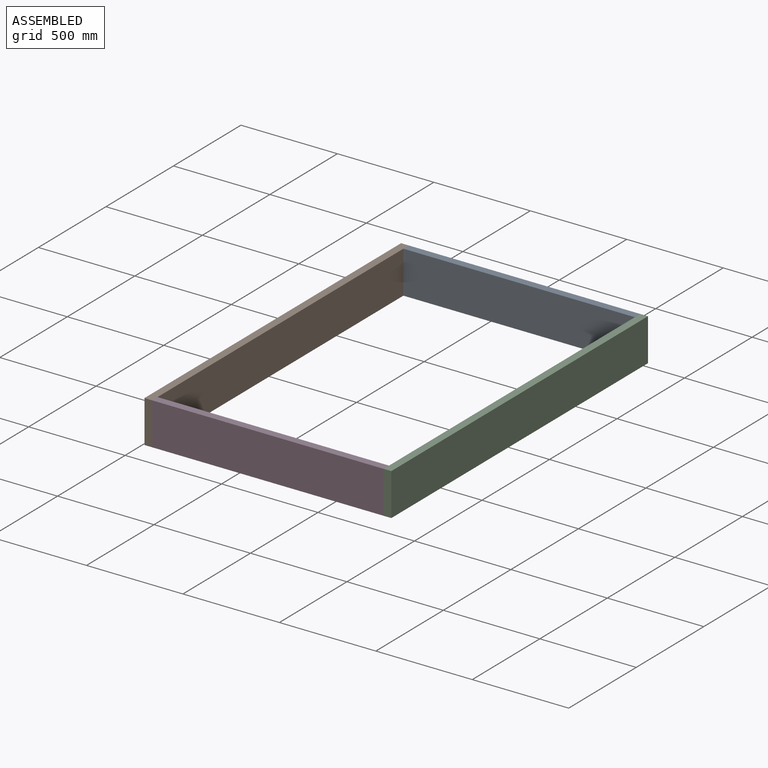
[diagram: assembled view]
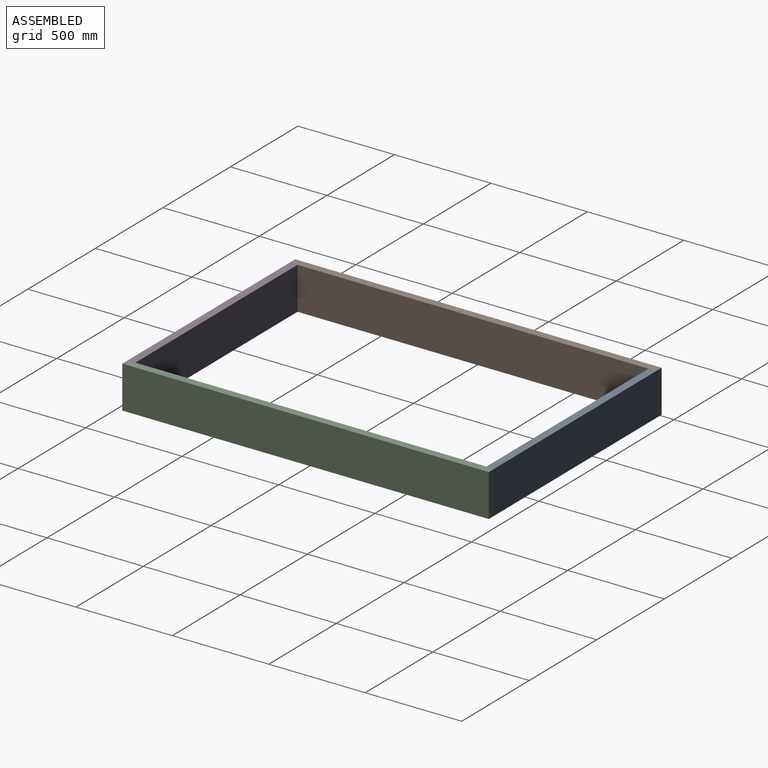
[diagram: assembled view, second angle]
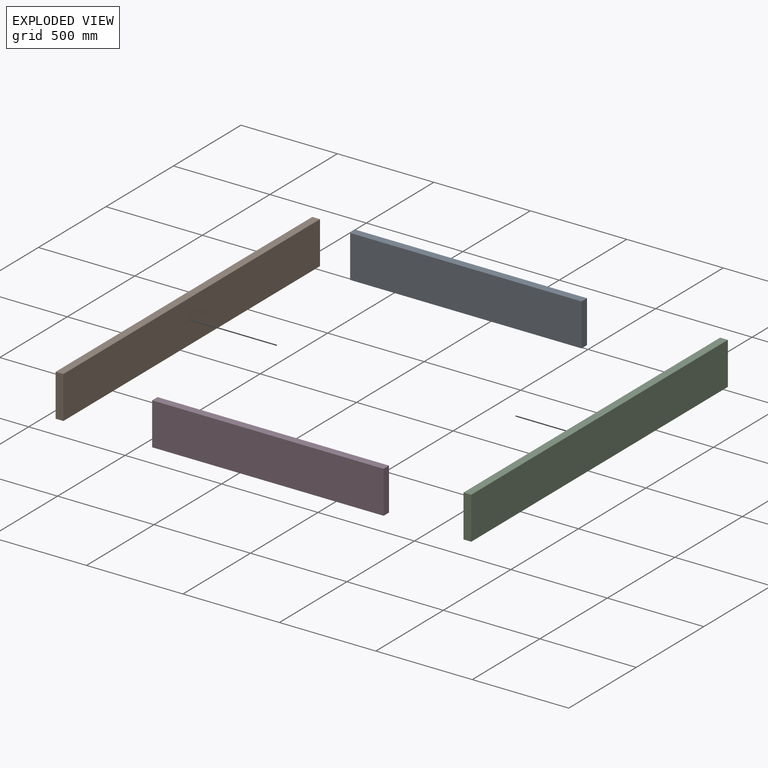
[diagram: exploded view]
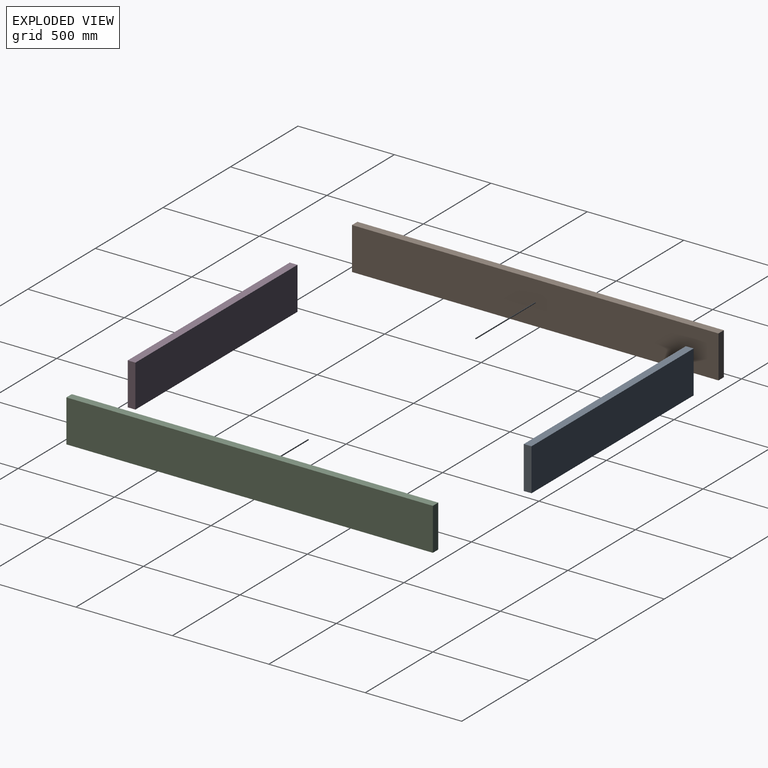
[diagram: exploded view, second angle]
ASSEMBLY  parts=4 mates=3
PART A: 6 faces, bbox 40x1200x220 mm
  f0: plane 1200x40mm, normal (0,0,-1), area 48000mm2, adj f1,f3,f4,f5
  f1: plane 220x40mm, normal (0,1,0), area 8800mm2, adj f0,f2,f4,f5
  f2: plane 1200x40mm, normal (0,0,1), area 48000mm2, adj f1,f3,f4,f5
  f3: plane 220x40mm, normal (0,-1,0), area 8800mm2, adj f0,f2,f4,f5
  f4: plane 1200x220mm, normal (1,0,0), area 264000mm2, adj f0,f1,f2,f3
  f5: plane 1200x220mm, normal (-1,0,0), area 264000mm2, adj f0,f1,f2,f3
PART B: 6 faces, bbox 40x1900x220 mm
  f0: plane 1900x40mm, normal (0,0,-1), area 76000mm2, adj f1,f3,f4,f5
  f1: plane 220x40mm, normal (0,1,0), area 8800mm2, adj f0,f2,f4,f5
  f2: plane 1900x40mm, normal (0,0,1), area 76000mm2, adj f1,f3,f4,f5
  f3: plane 220x40mm, normal (0,-1,0), area 8800mm2, adj f0,f2,f4,f5
  f4: plane 1900x220mm, normal (1,0,0), area 418000mm2, adj f0,f1,f2,f3
  f5: plane 1900x220mm, normal (-1,0,0), area 418000mm2, adj f0,f1,f2,f3
PART C: same geometry as B
PART D: same geometry as A
PLACE A rot(axis=(0,0,1),90deg) t=(190.37,1931.42,-27.73)mm
PLACE B t=(-449.63,1021.42,-27.73)mm
PLACE C t=(790.37,1021.42,-27.73)mm
PLACE D rot(axis=(0,0,1),90deg) t=(190.37,71.42,-27.73)mm
MATE fastened A.f3 <-> C.f5  axis (1,0,0) through (790.37,1971.42,-27.73)mm
MATE fastened B.f4 <-> D.f1  axis (1,0,0) through (-409.63,71.42,-27.73)mm
MATE fastened C.f3 <-> D.f5  axis (0,-1,0) through (790.37,71.42,-27.73)mm
